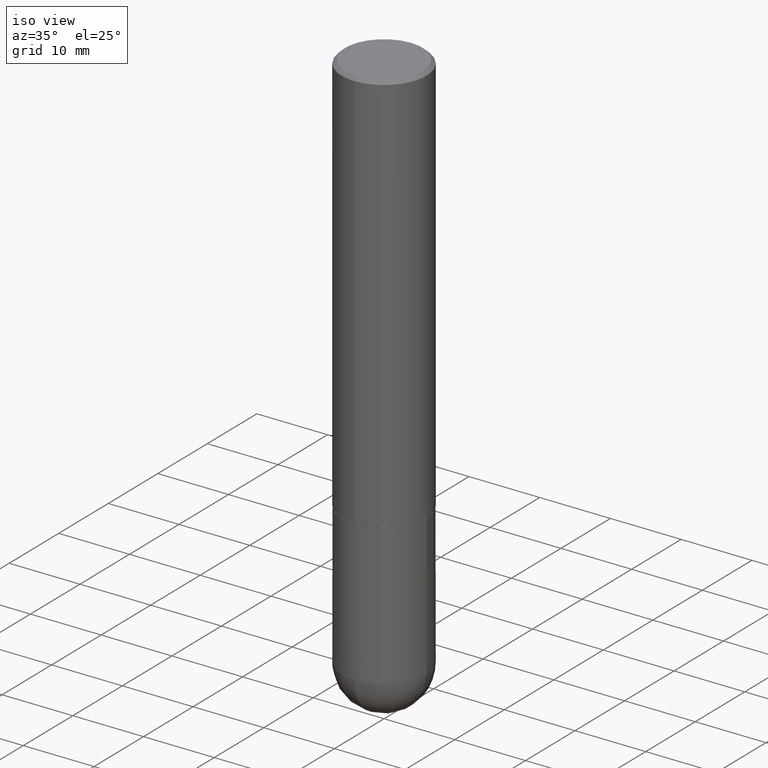
[diagram: clean part render]
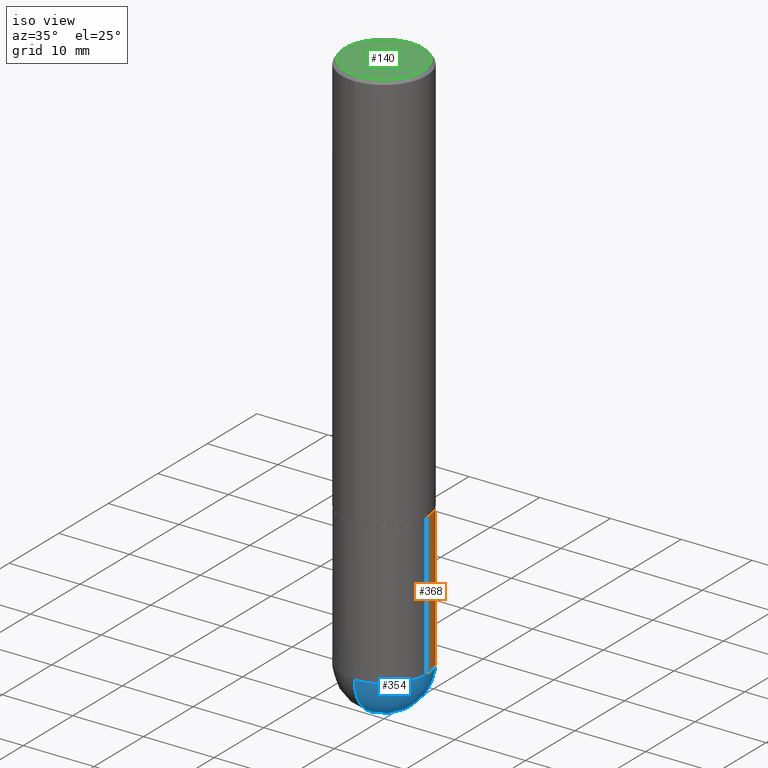
[diagram: same view with three faces highlighted in distinct colors, each labeled with its STEP entity id]
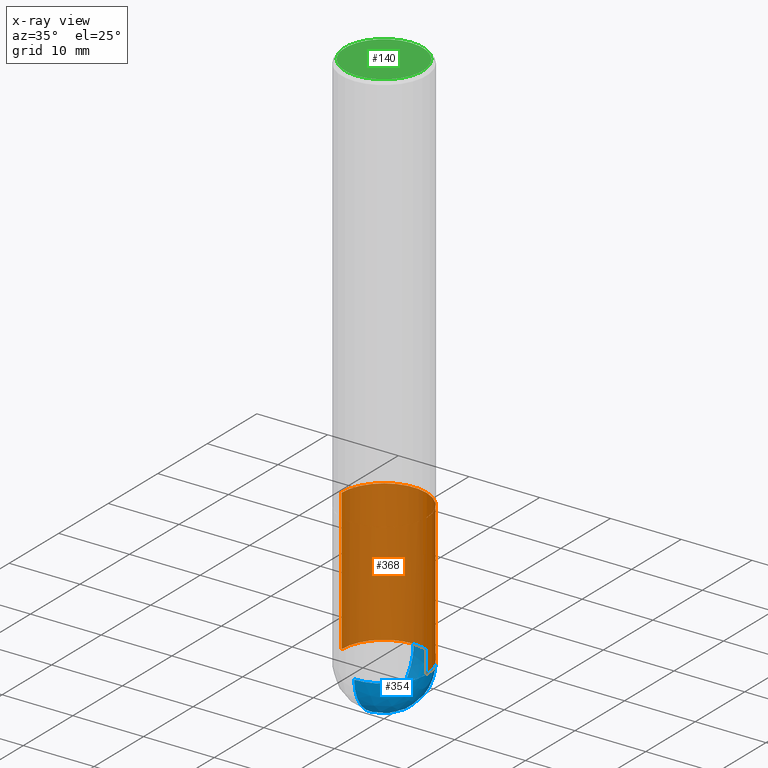
[diagram: x-ray of the same camera — body ghosted, the three highlighted faces saturated]
A machine part, iso view with three faces highlighted in distinct colors.
The next image is the same camera in x-ray (body ghosted, the three faces saturated) — at least one of them is partly hidden behind the body in this view.
Their STEP definitions:

[orange] entity #368 — the highlighted cylindrical surface (partial cylindrical patch) has radius 5.9995 mm, axis along (-0, 0, 1).
#8 = CARTESIAN_POINT ( 'NONE',  ( -0.2361999999999999933, -7.531527533735092287E-15, -2.244100000000000428 ) ) ;
#14 = EDGE_CURVE ( 'NONE', #279, #103, #372, .T. ) ;
#31 = CARTESIAN_POINT ( 'NONE',  ( 0.2361999999999999933, -1.085920526006994836E-14, -3.031499999999999417 ) ) ;
#43 = CARTESIAN_POINT ( 'NONE',  ( -0.2361999999999999933, 1.678301941865356591E-15, -1.161852468318208757E-29 ) ) ;
#46 = AXIS2_PLACEMENT_3D ( 'NONE', #89, #337, #364 ) ;
#54 = VERTEX_POINT ( 'NONE', #31 ) ;
#59 = VECTOR ( 'NONE', #241, 39.37007874015748143 ) ;
#64 = EDGE_CURVE ( 'NONE', #54, #274, #391, .T. ) ;
#89 = CARTESIAN_POINT ( 'NONE',  ( 7.413438685950241710E-29, -1.058442567870299344E-14, -3.031499999999999417 ) ) ;
#95 = ORIENTED_EDGE ( 'NONE', *, *, #14, .F. ) ;
#103 = VERTEX_POINT ( 'NONE', #8 ) ;
#116 = LINE ( 'NONE', #359, #59 ) ;
#122 = ORIENTED_EDGE ( 'NONE', *, *, #293, .T. ) ;
#129 = ORIENTED_EDGE ( 'NONE', *, *, #323, .F. ) ;
#145 = DIRECTION ( 'NONE',  ( -2.445468806185136597E-29, 3.491481338843145583E-15, 1.000000000000000000 ) ) ;
#151 = CARTESIAN_POINT ( 'NONE',  ( -0.2361999999999999933, -7.531527533735093865E-15, -3.031499999999999417 ) ) ;
#169 = DIRECTION ( 'NONE',  ( -2.445468806185136877E-29, 3.491481338843145188E-15, 1.000000000000000000 ) ) ;
#181 = AXIS2_PLACEMENT_3D ( 'NONE', #204, #221, #406 ) ;
#204 = CARTESIAN_POINT ( 'NONE',  ( 5.487876547960065873E-29, -7.835233272497903917E-15, -2.244100000000000428 ) ) ;
#217 = ORIENTED_EDGE ( 'NONE', *, *, #244, .T. ) ;
#221 = DIRECTION ( 'NONE',  ( -2.445468806185136597E-29, 3.491481338843145583E-15, 1.000000000000000000 ) ) ;
#232 = LINE ( 'NONE', #43, #373 ) ;
#241 = DIRECTION ( 'NONE',  ( -2.445468806185136877E-29, 3.491481338843145188E-15, 1.000000000000000000 ) ) ;
#243 = CYLINDRICAL_SURFACE ( 'NONE', #380, 0.2361999999999999933 ) ;
#244 = EDGE_CURVE ( 'NONE', #363, #103, #232, .T. ) ;
#257 = CARTESIAN_POINT ( 'NONE',  ( 7.413438685950241710E-29, -1.058442567870299344E-14, -3.031499999999999417 ) ) ;
#273 = CARTESIAN_POINT ( 'NONE',  ( 0.000000000000000000, 0.000000000000000000, 0.000000000000000000 ) ) ;
#274 = VERTEX_POINT ( 'NONE', #329 ) ;
#278 = FACE_OUTER_BOUND ( 'NONE', #286, .T. ) ;
#279 = VERTEX_POINT ( 'NONE', #340 ) ;
#286 = EDGE_LOOP ( 'NONE', ( #122, #217, #95, #129, #341 ) ) ;
#293 = EDGE_CURVE ( 'NONE', #274, #363, #409, .T. ) ;
#304 = DIRECTION ( 'NONE',  ( 1.000000000000000000, -6.982962677686266711E-15, 4.876176775795936353E-29 ) ) ;
#318 = DIRECTION ( 'NONE',  ( -2.445468806185136597E-29, 3.491481338843145583E-15, 1.000000000000000000 ) ) ;
#323 = EDGE_CURVE ( 'NONE', #54, #279, #116, .T. ) ;
#329 = CARTESIAN_POINT ( 'NONE',  ( 1.649375784469569495E-15, 0.2361999999999893074, -3.031500000000000750 ) ) ;
#337 = DIRECTION ( 'NONE',  ( -2.445468806185136597E-29, 3.491481338843145583E-15, 1.000000000000000000 ) ) ;
#340 = CARTESIAN_POINT ( 'NONE',  ( 0.2361999999999999933, -9.484609056967400443E-15, -2.244100000000000428 ) ) ;
#341 = ORIENTED_EDGE ( 'NONE', *, *, #64, .T. ) ;
#359 = CARTESIAN_POINT ( 'NONE',  ( 0.2361999999999999933, -1.649375784469496131E-15, 1.151752954443000088E-29 ) ) ;
#363 = VERTEX_POINT ( 'NONE', #151 ) ;
#364 = DIRECTION ( 'NONE',  ( 1.000000000000000000, -6.982962677686265133E-15, 0.000000000000000000 ) ) ;
#367 = AXIS2_PLACEMENT_3D ( 'NONE', #257, #318, #377 ) ;
#368 = ADVANCED_FACE ( 'NONE', ( #278 ), #243, .T. ) ;
#372 = CIRCLE ( 'NONE', #181, 0.2361999999999999933 ) ;
#373 = VECTOR ( 'NONE', #169, 39.37007874015748143 ) ;
#377 = DIRECTION ( 'NONE',  ( 1.000000000000000000, -6.982962677686265133E-15, 0.000000000000000000 ) ) ;
#380 = AXIS2_PLACEMENT_3D ( 'NONE', #273, #145, #304 ) ;
#391 = CIRCLE ( 'NONE', #367, 0.2361999999999999933 ) ;
#406 = DIRECTION ( 'NONE',  ( 1.000000000000000000, -6.982962677686269077E-15, 0.000000000000000000 ) ) ;
#409 = CIRCLE ( 'NONE', #46, 0.2361999999999999933 ) ;

[blue] entity #354 — the highlighted spherical surface has radius 5.9995 mm.
#17 = CARTESIAN_POINT ( 'NONE',  ( 7.082318908036356584E-29, -1.105860804684304690E-14, -3.031500000000000306 ) ) ;
#20 = VERTEX_POINT ( 'NONE', #51 ) ;
#24 = EDGE_CURVE ( 'NONE', #20, #54, #254, .T. ) ;
#28 = DIRECTION ( 'NONE',  ( -2.445468806185136597E-29, 3.491481338843145583E-15, 1.000000000000000000 ) ) ;
#31 = CARTESIAN_POINT ( 'NONE',  ( 0.2361999999999999933, -1.085920526006994836E-14, -3.031499999999999417 ) ) ;
#33 = CARTESIAN_POINT ( 'NONE',  ( 7.082318908036356584E-29, -1.105860804684304690E-14, -3.031500000000000306 ) ) ;
#51 = CARTESIAN_POINT ( 'NONE',  ( -1.678301941865284805E-15, -0.2362000000000109567, -3.031499999999998529 ) ) ;
#54 = VERTEX_POINT ( 'NONE', #31 ) ;
#56 = ORIENTED_EDGE ( 'NONE', *, *, #69, .F. ) ;
#64 = EDGE_CURVE ( 'NONE', #54, #274, #391, .T. ) ;
#69 = EDGE_CURVE ( 'NONE', #146, #20, #164, .T. ) ;
#101 = CARTESIAN_POINT ( 'NONE',  ( 7.413438685950241710E-29, -1.058442567870299344E-14, -3.031499999999999417 ) ) ;
#110 = AXIS2_PLACEMENT_3D ( 'NONE', #137, #264, #205 ) ;
#126 = EDGE_CURVE ( 'NONE', #146, #274, #182, .T. ) ;
#130 = DIRECTION ( 'NONE',  ( -1.000000000000000000, 7.105427357601001070E-15, -4.926315508542082329E-29 ) ) ;
#137 = CARTESIAN_POINT ( 'NONE',  ( 7.082318908036356584E-29, -1.105860804684304690E-14, -3.031500000000000306 ) ) ;
#146 = VERTEX_POINT ( 'NONE', #327 ) ;
#154 = AXIS2_PLACEMENT_3D ( 'NONE', #17, #362, #175 ) ;
#164 = CIRCLE ( 'NONE', #398, 0.2362000000000002709 ) ;
#172 = AXIS2_PLACEMENT_3D ( 'NONE', #101, #28, #345 ) ;
#175 = DIRECTION ( 'NONE',  ( 6.982962677686265922E-15, 1.000000000000000000, -4.626330217890364603E-15 ) ) ;
#182 = CIRCLE ( 'NONE', #110, 0.2362000000000002709 ) ;
#185 = FACE_OUTER_BOUND ( 'NONE', #366, .T. ) ;
#190 = ORIENTED_EDGE ( 'NONE', *, *, #126, .T. ) ;
#205 = DIRECTION ( 'NONE',  ( 6.982962677686265922E-15, 1.000000000000000000, 0.000000000000000000 ) ) ;
#253 = ORIENTED_EDGE ( 'NONE', *, *, #64, .F. ) ;
#254 = CIRCLE ( 'NONE', #172, 0.2361999999999999933 ) ;
#257 = CARTESIAN_POINT ( 'NONE',  ( 7.413438685950241710E-29, -1.058442567870299344E-14, -3.031499999999999417 ) ) ;
#264 = DIRECTION ( 'NONE',  ( 1.000000000000000000, -6.982962677686265922E-15, 4.883557194083112340E-29 ) ) ;
#274 = VERTEX_POINT ( 'NONE', #329 ) ;
#280 = SPHERICAL_SURFACE ( 'NONE', #154, 0.2362000000000002709 ) ;
#281 = ORIENTED_EDGE ( 'NONE', *, *, #24, .F. ) ;
#285 = DIRECTION ( 'NONE',  ( -7.105427357601001070E-15, -1.000000000000000000, 0.000000000000000000 ) ) ;
#318 = DIRECTION ( 'NONE',  ( -2.445468806185136597E-29, 3.491481338843145583E-15, 1.000000000000000000 ) ) ;
#327 = CARTESIAN_POINT ( 'NONE',  ( 7.670038153932495115E-29, -1.186883286037986759E-14, -3.267700000000000049 ) ) ;
#329 = CARTESIAN_POINT ( 'NONE',  ( 1.649375784469569495E-15, 0.2361999999999893074, -3.031500000000000750 ) ) ;
#345 = DIRECTION ( 'NONE',  ( 1.000000000000000000, -6.982962677686265133E-15, 0.000000000000000000 ) ) ;
#354 = ADVANCED_FACE ( 'NONE', ( #185 ), #280, .T. ) ;
#362 = DIRECTION ( 'NONE',  ( -1.000000000000000000, 6.982962677686265922E-15, -4.883557194083112901E-29 ) ) ;
#366 = EDGE_LOOP ( 'NONE', ( #56, #190, #253, #281 ) ) ;
#367 = AXIS2_PLACEMENT_3D ( 'NONE', #257, #318, #377 ) ;
#377 = DIRECTION ( 'NONE',  ( 1.000000000000000000, -6.982962677686265133E-15, 0.000000000000000000 ) ) ;
#391 = CIRCLE ( 'NONE', #367, 0.2361999999999999933 ) ;
#398 = AXIS2_PLACEMENT_3D ( 'NONE', #33, #130, #285 ) ;

[green] entity #140 — the highlighted planar face has unit normal (0, -0, -1).
#35 = CARTESIAN_POINT ( 'NONE',  ( -4.077789392714510406E-45, 5.827473096868962417E-31, 1.668270030020566327E-16 ) ) ;
#90 = EDGE_LOOP ( 'NONE', ( #311, #220 ) ) ;
#98 = EDGE_CURVE ( 'NONE', #313, #407, #322, .T. ) ;
#113 = DIRECTION ( 'NONE',  ( 6.982962677686265922E-15, 1.000000000000000000, -3.493123410481168498E-15 ) ) ;
#123 = DIRECTION ( 'NONE',  ( -2.444322153688896365E-29, 3.493123410481168498E-15, 1.000000000000000000 ) ) ;
#127 = AXIS2_PLACEMENT_3D ( 'NONE', #216, #272, #149 ) ;
#140 = ADVANCED_FACE ( 'NONE', ( #260 ), #266, .F. ) ;
#142 = CIRCLE ( 'NONE', #127, 0.2161999999999997535 ) ;
#149 = DIRECTION ( 'NONE',  ( -6.982962677686266711E-15, -1.000000000000000000, 3.493123410481168892E-15 ) ) ;
#180 = CARTESIAN_POINT ( 'NONE',  ( 1.579546157692632438E-15, 0.2161999999999997535, -5.883862783439711833E-16 ) ) ;
#216 = CARTESIAN_POINT ( 'NONE',  ( -4.077789392714510406E-45, 5.827473096868962417E-31, 1.668270030020566327E-16 ) ) ;
#218 = AXIS2_PLACEMENT_3D ( 'NONE', #35, #123, #370 ) ;
#220 = ORIENTED_EDGE ( 'NONE', *, *, #386, .T. ) ;
#260 = FACE_OUTER_BOUND ( 'NONE', #90, .T. ) ;
#262 = CARTESIAN_POINT ( 'NONE',  ( 1.509716530915769140E-15, 0.2161999999999997535, -6.717997798449995119E-16 ) ) ;
#266 = PLANE ( 'NONE',  #339 ) ;
#272 = DIRECTION ( 'NONE',  ( -2.444322153688896365E-29, 3.493123410481168498E-15, 1.000000000000000000 ) ) ;
#311 = ORIENTED_EDGE ( 'NONE', *, *, #98, .T. ) ;
#313 = VERTEX_POINT ( 'NONE', #180 ) ;
#322 = CIRCLE ( 'NONE', #218, 0.2161999999999997535 ) ;
#332 = CARTESIAN_POINT ( 'NONE',  ( -1.551844647095918761E-15, -0.2161999999999997535, 9.220402843480843994E-16 ) ) ;
#339 = AXIS2_PLACEMENT_3D ( 'NONE', #262, #383, #113 ) ;
#370 = DIRECTION ( 'NONE',  ( -6.982962677686266711E-15, -1.000000000000000000, 3.493123410481168892E-15 ) ) ;
#383 = DIRECTION ( 'NONE',  ( 2.444322153688896085E-29, -3.493123410481168498E-15, -1.000000000000000000 ) ) ;
#386 = EDGE_CURVE ( 'NONE', #407, #313, #142, .T. ) ;
#407 = VERTEX_POINT ( 'NONE', #332 ) ;